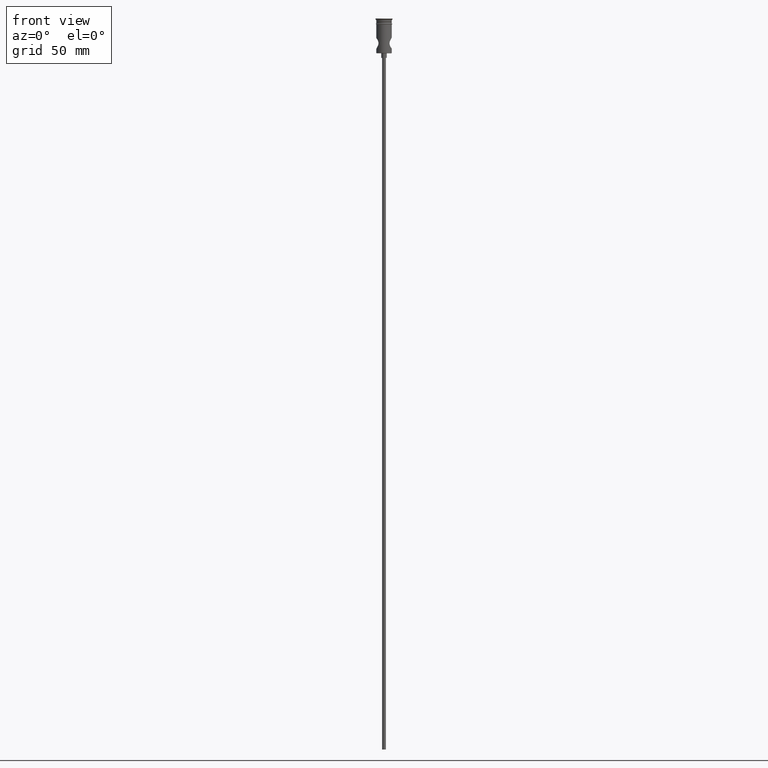
[diagram: clean part render]
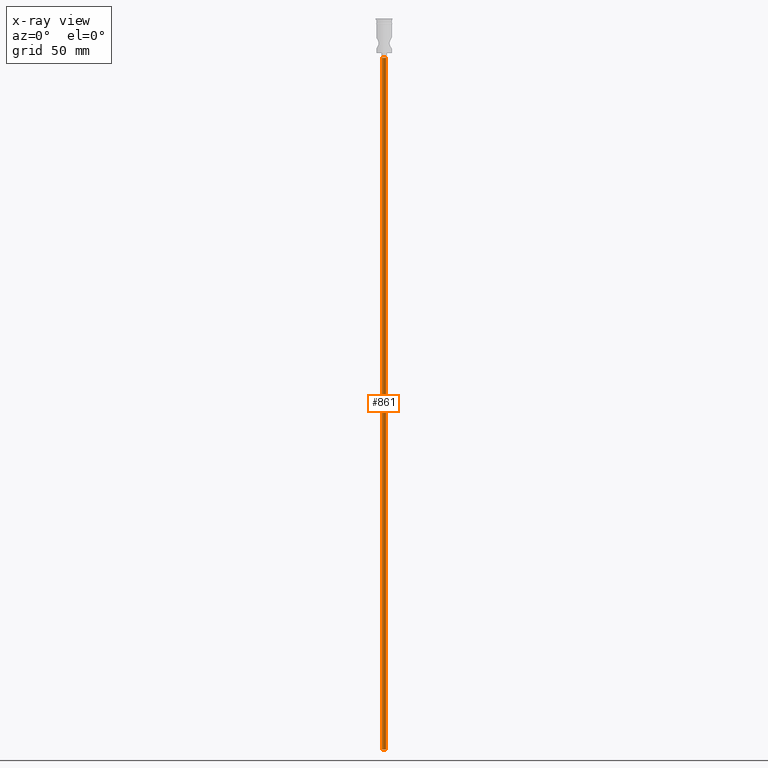
[diagram: x-ray — body ghosted, one internal face saturated and labeled with its STEP entity id]
A machine part, front view, then the same camera in x-ray: the body is ghosted and one INTERNAL B-rep face — a face not visible from any outside direction — is saturated and labeled: STEP entity #861.
In plain terms, the highlighted cylindrical surface (edge-blend (fillet) strip) has radius 1.25 mm, axis along (-0, -0, 1).
Its self-contained STEP definition (entity closure, byte-faithful):
#44 = CARTESIAN_POINT ( 'NONE',  ( 0.000000000000000000, 0.000000000000000000, -25.50000000000000000 ) ) ;
#49 = CARTESIAN_POINT ( 'NONE',  ( -1.250000000000000000, 1.530808498934191571E-16, -25.50000000000000000 ) ) ;
#59 = CARTESIAN_POINT ( 'NONE',  ( 1.250000000000000000, 0.000000000000000000, -472.5000000000000568 ) ) ;
#139 = VECTOR ( 'NONE', #1387, 1000.000000000000000 ) ;
#154 = CIRCLE ( 'NONE', #1054, 1.250000000000000000 ) ;
#168 = LINE ( 'NONE', #59, #139 ) ;
#203 = AXIS2_PLACEMENT_3D ( 'NONE', #219, #655, #663 ) ;
#216 = CARTESIAN_POINT ( 'NONE',  ( 0.000000000000000000, 0.000000000000000000, -472.5000000000000568 ) ) ;
#219 = CARTESIAN_POINT ( 'NONE',  ( 0.000000000000000000, 0.000000000000000000, -472.5000000000000568 ) ) ;
#289 = VERTEX_POINT ( 'NONE', #455 ) ;
#398 = ORIENTED_EDGE ( 'NONE', *, *, #1329, .T. ) ;
#402 = ORIENTED_EDGE ( 'NONE', *, *, #1137, .F. ) ;
#455 = CARTESIAN_POINT ( 'NONE',  ( 1.250000000000000000, 0.000000000000000000, -472.5000000000000568 ) ) ;
#467 = DIRECTION ( 'NONE',  ( -1.000000000000000000, 0.000000000000000000, 0.000000000000000000 ) ) ;
#511 = ORIENTED_EDGE ( 'NONE', *, *, #985, .T. ) ;
#551 = CYLINDRICAL_SURFACE ( 'NONE', #203, 1.250000000000000000 ) ;
#565 = CIRCLE ( 'NONE', #1411, 1.250000000000000000 ) ;
#655 = DIRECTION ( 'NONE',  ( -0.000000000000000000, -0.000000000000000000, 1.000000000000000000 ) ) ;
#663 = DIRECTION ( 'NONE',  ( 1.000000000000000000, 0.000000000000000000, 0.000000000000000000 ) ) ;
#734 = VERTEX_POINT ( 'NONE', #1294 ) ;
#764 = LINE ( 'NONE', #855, #848 ) ;
#789 = DIRECTION ( 'NONE',  ( 0.000000000000000000, 0.000000000000000000, -1.000000000000000000 ) ) ;
#848 = VECTOR ( 'NONE', #967, 1000.000000000000000 ) ;
#855 = CARTESIAN_POINT ( 'NONE',  ( -1.250000000000000000, 1.530808498934191571E-16, -472.5000000000000568 ) ) ;
#861 = ADVANCED_FACE ( 'NONE', ( #1206 ), #551, .T. ) ;
#889 = DIRECTION ( 'NONE',  ( 0.000000000000000000, 0.000000000000000000, -1.000000000000000000 ) ) ;
#916 = VERTEX_POINT ( 'NONE', #1357 ) ;
#967 = DIRECTION ( 'NONE',  ( -0.000000000000000000, -0.000000000000000000, 1.000000000000000000 ) ) ;
#985 = EDGE_CURVE ( 'NONE', #1231, #734, #565, .T. ) ;
#1004 = ORIENTED_EDGE ( 'NONE', *, *, #1117, .F. ) ;
#1006 = DIRECTION ( 'NONE',  ( -1.000000000000000000, 0.000000000000000000, 0.000000000000000000 ) ) ;
#1032 = EDGE_LOOP ( 'NONE', ( #402, #398, #511, #1004 ) ) ;
#1054 = AXIS2_PLACEMENT_3D ( 'NONE', #216, #889, #1006 ) ;
#1117 = EDGE_CURVE ( 'NONE', #289, #734, #168, .T. ) ;
#1137 = EDGE_CURVE ( 'NONE', #916, #289, #154, .T. ) ;
#1206 = FACE_OUTER_BOUND ( 'NONE', #1032, .T. ) ;
#1231 = VERTEX_POINT ( 'NONE', #49 ) ;
#1294 = CARTESIAN_POINT ( 'NONE',  ( 1.250000000000000000, 0.000000000000000000, -25.50000000000000000 ) ) ;
#1329 = EDGE_CURVE ( 'NONE', #916, #1231, #764, .T. ) ;
#1357 = CARTESIAN_POINT ( 'NONE',  ( -1.250000000000000000, 1.530808498934191571E-16, -472.5000000000000568 ) ) ;
#1387 = DIRECTION ( 'NONE',  ( -0.000000000000000000, -0.000000000000000000, 1.000000000000000000 ) ) ;
#1411 = AXIS2_PLACEMENT_3D ( 'NONE', #44, #789, #467 ) ;